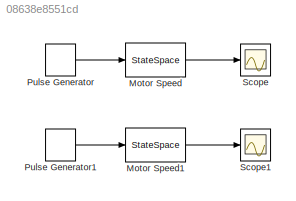
MODEL slx_08638e8551cd
KIND model
CONFIG AbsTol = auto
CONFIG EnableMultiTasking = off
CONFIG FixedStep = auto
CONFIG MaxStep = auto
CONFIG MinStep = auto
CONFIG RelTol = 1e-3
CONFIG SampleTimeConstraint = Unconstrained
CONFIG SolverName = VariableStepAuto
CONFIG StartTime = 0.0
CONFIG StopTime = 10.0
BLOCK [StateSpace] Motor Speed
  A = [-1.193e+04       1.951       113.2           0; 64           0           0           0;  0         128           0           0; 0           0           1           0]
  B = [64;0;0;0]
  C = [ 68.56          0  -0.001724          0]
  D = 0
  InitialCondition = 0
  Ports = [1, 1]
BLOCK [StateSpace] Motor Speed1
  A = [-1.193e+04       1.951       113.2           0; 64           0           0           0;  0         128           0           0; 0           0           1           0]
  B = [64;0;0;0]
  C = [ 68.56          0  -0.001724          0]
  D = 0
  InitialCondition = 0
  Ports = [1, 1]
BLOCK [DiscretePulseGenerator] Pulse Generator
  Period = 10
  Ports = [0, 1]
  PulseType = Time based
  PulseWidth = 5
BLOCK [DiscretePulseGenerator] Pulse Generator1
  Period = 10
  Ports = [0, 1]
  PulseType = Time based
  PulseWidth = 5
BLOCK [Scope] Scope
  Floating = off
  NumInputPorts = 1
  Ports = [1]
  ScopeSpecificationString = Simulink.scopes.TimeScopeBlockCfg('CurrentConfiguration', extmgr.ConfigurationSet(extmgr.Configuration('Core','General UI',true),extmgr.Configuration('Core','Source UI',true),extmgr.Configuration('Sources','WiredSimulink',true),extmgr.Configuration('Visuals','Time Domain',true,'SerializedDisplays',{struct('MinYLimReal','-5211971565196764257336506317564542976.00000','MaxYLimReal','46907744086770887...<+1676ch>
BLOCK [Scope] Scope1
  Floating = off
  NumInputPorts = 1
  Ports = [1]
  ScopeSpecificationString = Simulink.scopes.TimeScopeBlockCfg('CurrentConfiguration', extmgr.ConfigurationSet(extmgr.Configuration('Core','General UI',true),extmgr.Configuration('Core','Source UI',true),extmgr.Configuration('Sources','WiredSimulink',true,'DataLoggingVariableName','ScopeData1'),extmgr.Configuration('Visuals','Time Domain',true,'SerializedDisplays',{struct('MinYLimReal','-5211971565196764257336506317564542976....<+1715ch>
LINE Motor Speed1:1 -> Scope1:1
LINE Motor Speed:1 -> Scope:1
LINE Pulse Generator1:1 -> Motor Speed1:1
LINE Pulse Generator:1 -> Motor Speed:1
